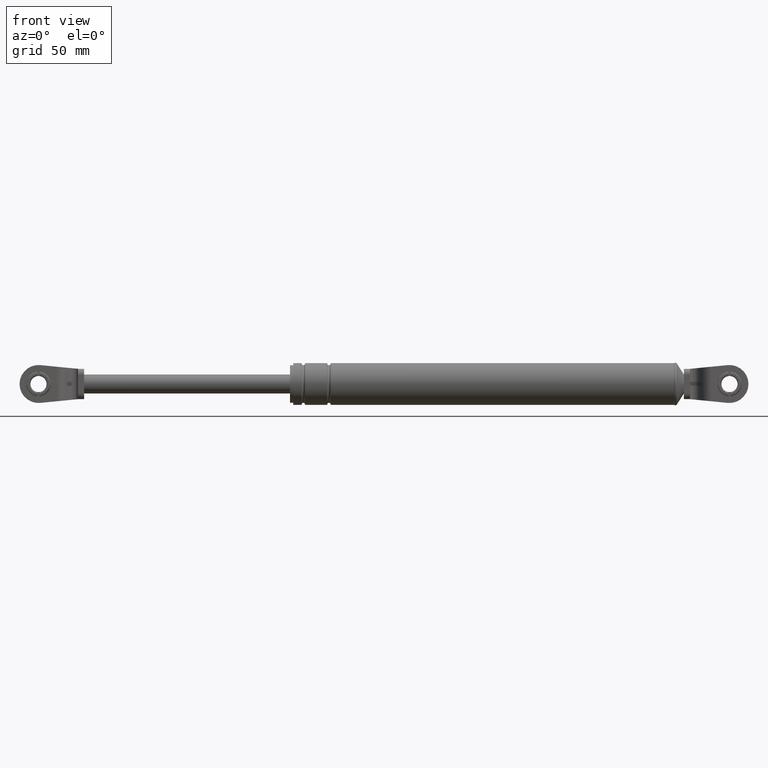
[diagram: clean part render]
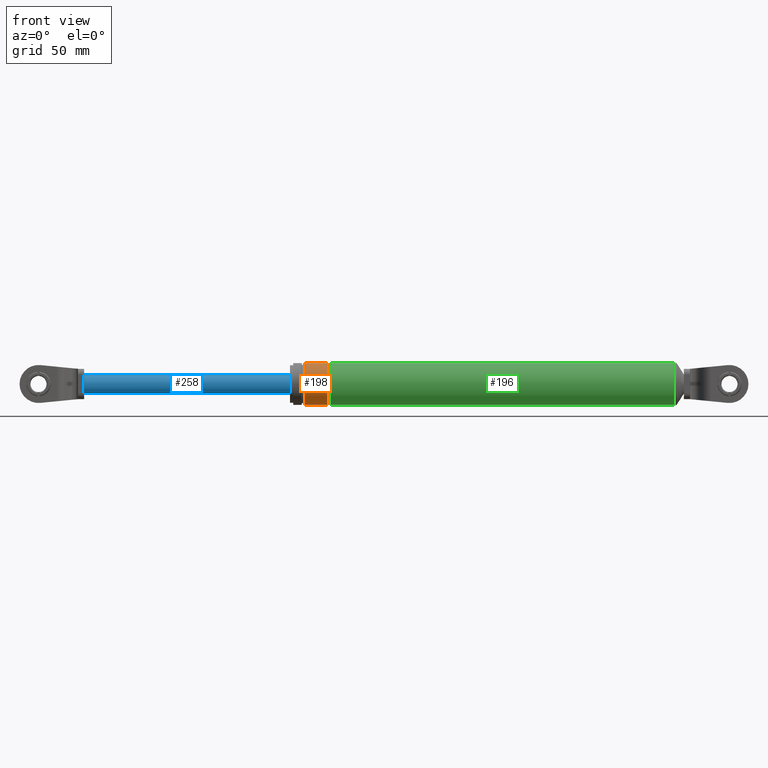
[diagram: same view with three faces highlighted in distinct colors, each labeled with its STEP entity id]
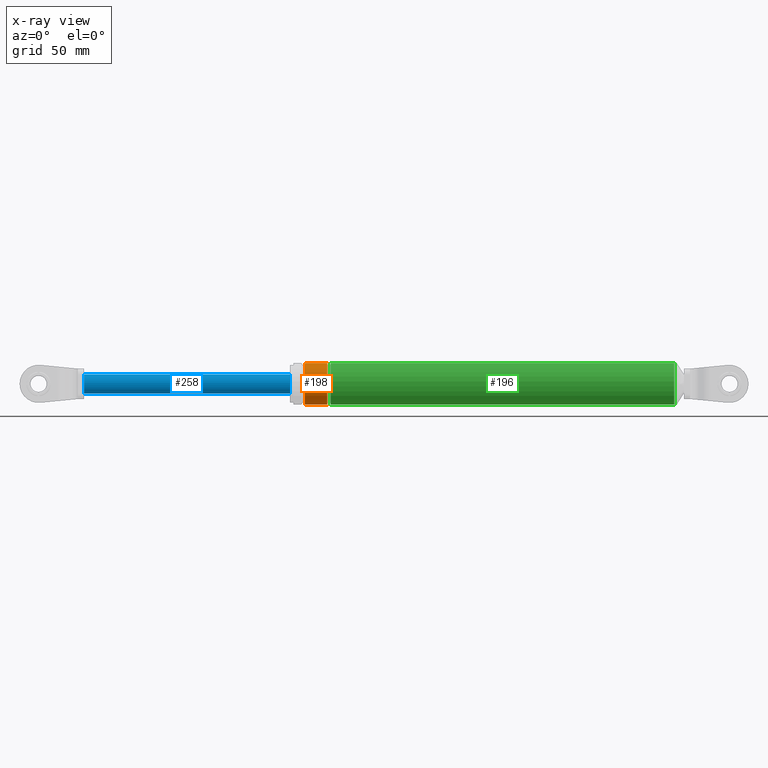
[diagram: x-ray of the same camera — body ghosted, the three highlighted faces saturated]
A machine part, front view with three faces highlighted in distinct colors.
The next image is the same camera in x-ray (body ghosted, the three faces saturated) — at least one of them is partly hidden behind the body in this view.
Their STEP definitions:

[orange] entity #198 — the highlighted cylindrical surface (edge-blend (fillet) strip) has radius 11 mm, axis along (1, 0, 0).
#198=ADVANCED_FACE('',(#1135),#1134,.T.);
#1134=CYLINDRICAL_SURFACE('',#2430,1.10000000000E+001);
#1135=FACE_OUTER_BOUND('',#2431,.T.);
#2427=CARTESIAN_POINT('',(0.00000000000E+000,0.00000000000E+000,1.93496945170E+002));
#2428=DIRECTION('',(1.00000000000E+000,-0.00000000000E+000,-0.00000000000E+000));
#2429=DIRECTION('',(-0.00000000000E+000,-0.00000000000E+000,-1.00000000000E+000));
#2430=AXIS2_PLACEMENT_3D('',#2427,#2428,#2429);
#2431=EDGE_LOOP('',(#3214,#3215,#3216,#3217));
#3214=ORIENTED_EDGE('',*,*,#3645,.F.);
#3215=ORIENTED_EDGE('',*,*,#3750,.T.);
#3216=ORIENTED_EDGE('',*,*,#3640,.T.);
#3217=ORIENTED_EDGE('',*,*,#3751,.F.);
#3640=EDGE_CURVE('',#4546,#4547,#4548,.T.);
#3645=EDGE_CURVE('',#4575,#4574,#4582,.T.);
#3750=EDGE_CURVE('',#4575,#4546,#5268,.T.);
#3751=EDGE_CURVE('',#4574,#4547,#5274,.T.);
#4546=VERTEX_POINT('',#6827);
#4547=VERTEX_POINT('',#6828);
#4548=CIRCLE('',#6832,1.10000000000E+001);
#4574=VERTEX_POINT('',#6847);
#4575=VERTEX_POINT('',#6848);
#4582=CIRCLE('',#6856,1.10000000000E+001);
#5268=(BOUNDED_CURVE() B_SPLINE_CURVE(1,(#7242,#7243),.UNSPECIFIED.,.F.,.F.) B_SPLINE_CURVE_WITH_KNOTS((2,2),(8.33333343261E-002,9.16666667006E-001),.UNSPECIFIED.) CURVE() GEOMETRIC_REPRESENTATION_ITEM() RATIONAL_B_SPLINE_CURVE((1.00000000000E+000,1.00000000000E+000)) REPRESENTATION_ITEM('') );
#5274=(BOUNDED_CURVE() B_SPLINE_CURVE(1,(#7244,#7245),.UNSPECIFIED.,.F.,.F.) B_SPLINE_CURVE_WITH_KNOTS((2,2),(8.33333333333E-002,9.16666666667E-001),.UNSPECIFIED.) CURVE() GEOMETRIC_REPRESENTATION_ITEM() RATIONAL_B_SPLINE_CURVE((7.50000000000E-001,7.50000000000E-001)) REPRESENTATION_ITEM('') );
#6827=CARTESIAN_POINT('',(1.84556691269E+002,5.92118946467E-016,1.82496945170E+002));
#6828=CARTESIAN_POINT('',(1.84556691269E+002,0.00000000000E+000,2.04496945170E+002));
#6829=CARTESIAN_POINT('',(1.84556691269E+002,0.00000000000E+000,1.93496945170E+002));
#6830=DIRECTION('',(-1.00000000000E+000,0.00000000000E+000,0.00000000000E+000));
#6831=DIRECTION('',(0.00000000000E+000,-1.22460635382E-016,1.00000000000E+000));
#6832=AXIS2_PLACEMENT_3D('',#6829,#6830,#6831);
#6847=CARTESIAN_POINT('',(1.72856691269E+002,0.00000000000E+000,2.04496945170E+002));
#6848=CARTESIAN_POINT('',(1.72856691269E+002,5.92118946467E-016,1.82496945170E+002));
#6853=CARTESIAN_POINT('',(1.72856691269E+002,0.00000000000E+000,1.93496945170E+002));
#6854=DIRECTION('',(-1.00000000000E+000,0.00000000000E+000,0.00000000000E+000));
#6855=DIRECTION('',(0.00000000000E+000,-1.22460635382E-016,1.00000000000E+000));
#6856=AXIS2_PLACEMENT_3D('',#6853,#6854,#6855);
#7242=CARTESIAN_POINT('',(1.72856691282E+002,0.00000000000E+000,1.82496945170E+002));
#7243=CARTESIAN_POINT('',(1.84556691273E+002,0.00000000000E+000,1.82496945170E+002));
#7244=CARTESIAN_POINT('',(1.72856691269E+002,0.00000000000E+000,2.04496945170E+002));
#7245=CARTESIAN_POINT('',(1.84556691269E+002,0.00000000000E+000,2.04496945170E+002));

[blue] entity #258 — the highlighted cylindrical surface (edge-blend (fillet) strip) has radius 5 mm, axis along (1, 0, 0).
#258=ADVANCED_FACE('',(#1739),#1738,.T.);
#1738=CYLINDRICAL_SURFACE('',#2750,5.00000000000E+000);
#1739=FACE_OUTER_BOUND('',#2751,.T.);
#2747=CARTESIAN_POINT('',(0.00000000000E+000,0.00000000000E+000,1.93496945170E+002));
#2748=DIRECTION('',(1.00000000000E+000,-0.00000000000E+000,-0.00000000000E+000));
#2749=DIRECTION('',(-0.00000000000E+000,-0.00000000000E+000,-1.00000000000E+000));
#2750=AXIS2_PLACEMENT_3D('',#2747,#2748,#2749);
#2751=EDGE_LOOP('',(#3510,#3511,#3512,#3513));
#3510=ORIENTED_EDGE('',*,*,#3841,.F.);
#3511=ORIENTED_EDGE('',*,*,#3906,.T.);
#3512=ORIENTED_EDGE('',*,*,#3825,.T.);
#3513=ORIENTED_EDGE('',*,*,#3907,.F.);
#3825=EDGE_CURVE('',#5770,#5771,#5772,.T.);
#3841=EDGE_CURVE('',#5873,#5880,#5881,.T.);
#3906=EDGE_CURVE('',#5873,#5770,#6304,.T.);
#3907=EDGE_CURVE('',#5880,#5771,#6310,.T.);
#5770=VERTEX_POINT('',#7614);
#5771=VERTEX_POINT('',#7615);
#5772=CIRCLE('',#7619,5.00000000000E+000);
#5873=VERTEX_POINT('',#7679);
#5880=VERTEX_POINT('',#7684);
#5881=CIRCLE('',#7688,5.00000000000E+000);
#6304=(BOUNDED_CURVE() B_SPLINE_CURVE(1,(#7926,#7927),.UNSPECIFIED.,.F.,.F.) B_SPLINE_CURVE_WITH_KNOTS((2,2),(7.78210114682E-002,9.22178988300E-001),.UNSPECIFIED.) CURVE() GEOMETRIC_REPRESENTATION_ITEM() RATIONAL_B_SPLINE_CURVE((1.00000000000E+000,1.00000000000E+000)) REPRESENTATION_ITEM('') );
#6310=(BOUNDED_CURVE() B_SPLINE_CURVE(1,(#7928,#7929),.UNSPECIFIED.,.F.,.F.) B_SPLINE_CURVE_WITH_KNOTS((2,2),(7.78210116732E-002,9.22178988327E-001),.UNSPECIFIED.) CURVE() GEOMETRIC_REPRESENTATION_ITEM() RATIONAL_B_SPLINE_CURVE((7.50000000000E-001,7.50000000000E-001)) REPRESENTATION_ITEM('') );
#7614=CARTESIAN_POINT('',(1.64956691269E+002,2.96059473233E-016,1.88496945170E+002));
#7615=CARTESIAN_POINT('',(1.64956691269E+002,0.00000000000E+000,1.98496945170E+002));
#7616=CARTESIAN_POINT('',(1.64956691269E+002,0.00000000000E+000,1.93496945170E+002));
#7617=DIRECTION('',(-1.00000000000E+000,0.00000000000E+000,0.00000000000E+000));
#7618=DIRECTION('',(0.00000000000E+000,-1.22460635382E-016,1.00000000000E+000));
#7619=AXIS2_PLACEMENT_3D('',#7616,#7617,#7618);
#7679=CARTESIAN_POINT('',(5.64566912686E+001,-4.88805815831E-013,1.88496945170E+002));
#7684=CARTESIAN_POINT('',(5.64566912686E+001,-7.04600016236E-004,1.98496945120E+002));
#7685=CARTESIAN_POINT('',(5.64566912686E+001,0.00000000000E+000,1.93496945170E+002));
#7686=DIRECTION('',(-1.00000000000E+000,0.00000000000E+000,0.00000000000E+000));
#7687=DIRECTION('',(-0.00000000000E+000,6.80000000000E-001,-7.33212111193E-001));
#7688=AXIS2_PLACEMENT_3D('',#7685,#7686,#7687);
#7926=CARTESIAN_POINT('',(5.64566912422E+001,0.00000000000E+000,1.88496945170E+002));
#7927=CARTESIAN_POINT('',(1.64956691265E+002,0.00000000000E+000,1.88496945170E+002));
#7928=CARTESIAN_POINT('',(5.64566912686E+001,-2.96059473233E-016,1.98496945170E+002));
#7929=CARTESIAN_POINT('',(1.64956691269E+002,-2.96059473233E-016,1.98496945170E+002));

[green] entity #196 — the highlighted cylindrical surface (edge-blend (fillet) strip) has radius 11 mm, axis along (1, 0, 0).
#196=ADVANCED_FACE('',(#1115),#1114,.T.);
#1114=CYLINDRICAL_SURFACE('',#2420,1.10000000000E+001);
#1115=FACE_OUTER_BOUND('',#2421,.T.);
#2417=CARTESIAN_POINT('',(0.00000000000E+000,0.00000000000E+000,1.93496945170E+002));
#2418=DIRECTION('',(1.00000000000E+000,-0.00000000000E+000,-0.00000000000E+000));
#2419=DIRECTION('',(-0.00000000000E+000,-0.00000000000E+000,-1.00000000000E+000));
#2420=AXIS2_PLACEMENT_3D('',#2417,#2418,#2419);
#2421=EDGE_LOOP('',(#3206,#3207,#3208,#3209));
#3206=ORIENTED_EDGE('',*,*,#3637,.F.);
#3207=ORIENTED_EDGE('',*,*,#3748,.T.);
#3208=ORIENTED_EDGE('',*,*,#3735,.T.);
#3209=ORIENTED_EDGE('',*,*,#3749,.F.);
#3637=EDGE_CURVE('',#4519,#4518,#4526,.T.);
#3735=EDGE_CURVE('',#5177,#5170,#5178,.T.);
#3748=EDGE_CURVE('',#4519,#5177,#5256,.T.);
#3749=EDGE_CURVE('',#4518,#5170,#5262,.T.);
#4518=VERTEX_POINT('',#6807);
#4519=VERTEX_POINT('',#6808);
#4526=CIRCLE('',#6816,1.10000000000E+001);
#5170=VERTEX_POINT('',#7192);
#5177=VERTEX_POINT('',#7195);
#5178=CIRCLE('',#7199,1.10000000000E+001);
#5256=(BOUNDED_CURVE() B_SPLINE_CURVE(1,(#7238,#7239),.UNSPECIFIED.,.F.,.F.) B_SPLINE_CURVE_WITH_KNOTS((2,2),(4.97526178137E-002,9.50247382111E-001),.UNSPECIFIED.) CURVE() GEOMETRIC_REPRESENTATION_ITEM() RATIONAL_B_SPLINE_CURVE((1.00000000000E+000,1.00000000000E+000)) REPRESENTATION_ITEM('') );
#5262=(BOUNDED_CURVE() B_SPLINE_CURVE(1,(#7240,#7241),.UNSPECIFIED.,.F.,.F.) B_SPLINE_CURVE_WITH_KNOTS((2,2),(4.97526179677E-002,9.50247382032E-001),.UNSPECIFIED.) CURVE() GEOMETRIC_REPRESENTATION_ITEM() RATIONAL_B_SPLINE_CURVE((7.50000000000E-001,7.50000000000E-001)) REPRESENTATION_ITEM('') );
#6807=CARTESIAN_POINT('',(1.86356691269E+002,0.00000000000E+000,2.04496945170E+002));
#6808=CARTESIAN_POINT('',(1.86356691269E+002,5.92118946467E-016,1.82496945170E+002));
#6813=CARTESIAN_POINT('',(1.86356691269E+002,0.00000000000E+000,1.93496945170E+002));
#6814=DIRECTION('',(-1.00000000000E+000,0.00000000000E+000,0.00000000000E+000));
#6815=DIRECTION('',(0.00000000000E+000,-1.22460635382E-016,1.00000000000E+000));
#6816=AXIS2_PLACEMENT_3D('',#6813,#6814,#6815);
#7192=CARTESIAN_POINT('',(3.67351139570E+002,0.00000000000E+000,2.04496945170E+002));
#7195=CARTESIAN_POINT('',(3.67351139570E+002,5.92118946467E-016,1.82496945170E+002));
#7196=CARTESIAN_POINT('',(3.67351139570E+002,0.00000000000E+000,1.93496945170E+002));
#7197=DIRECTION('',(-1.00000000000E+000,0.00000000000E+000,0.00000000000E+000));
#7198=DIRECTION('',(0.00000000000E+000,-1.22460635382E-016,1.00000000000E+000));
#7199=AXIS2_PLACEMENT_3D('',#7196,#7197,#7198);
#7238=CARTESIAN_POINT('',(1.86356691238E+002,0.00000000000E+000,1.82496945170E+002));
#7239=CARTESIAN_POINT('',(3.67351139586E+002,0.00000000000E+000,1.82496945170E+002));
#7240=CARTESIAN_POINT('',(1.86356691269E+002,0.00000000000E+000,2.04496945170E+002));
#7241=CARTESIAN_POINT('',(3.67351139570E+002,0.00000000000E+000,2.04496945170E+002));